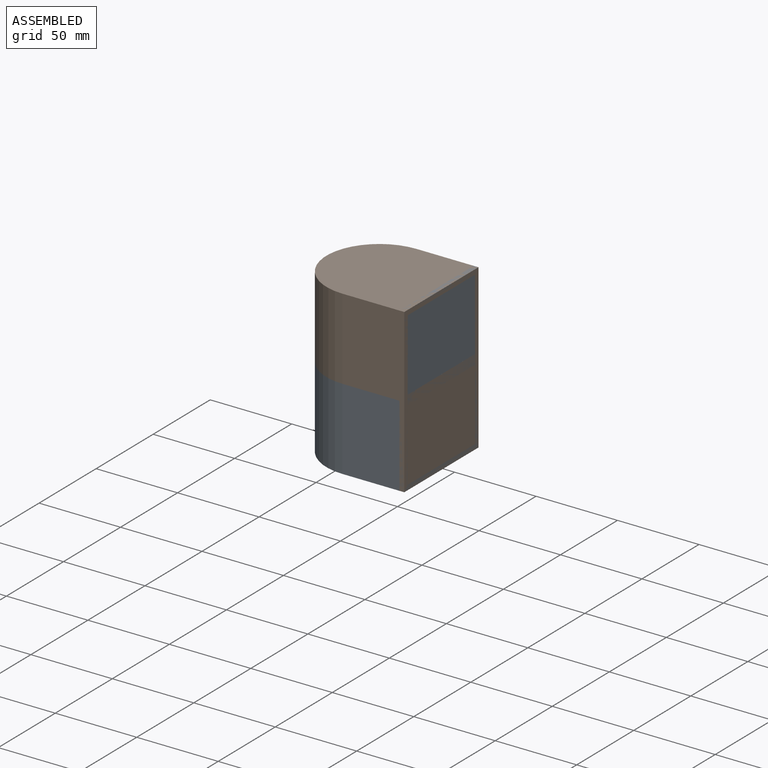
[diagram: assembled view]
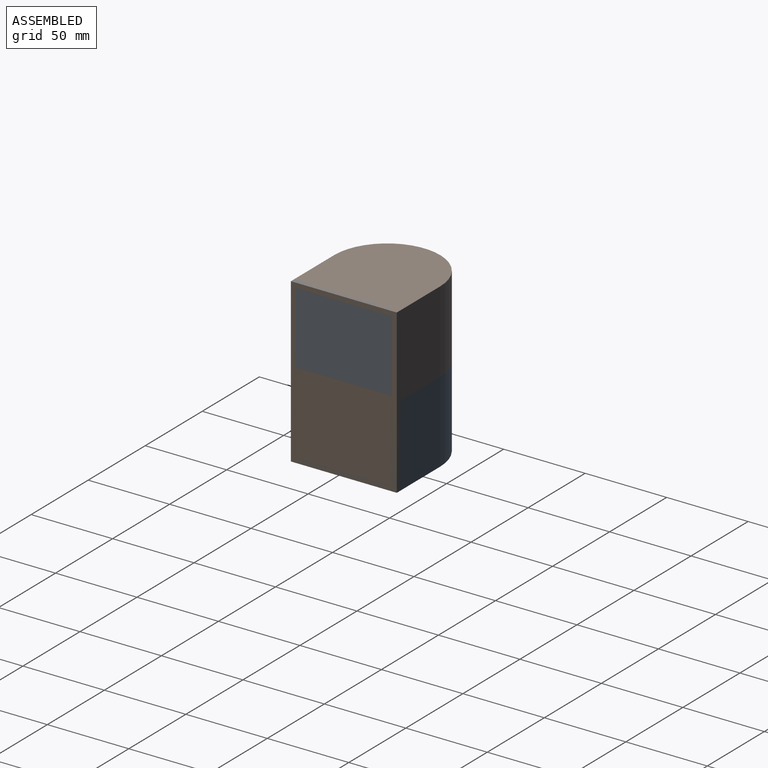
[diagram: assembled view, second angle]
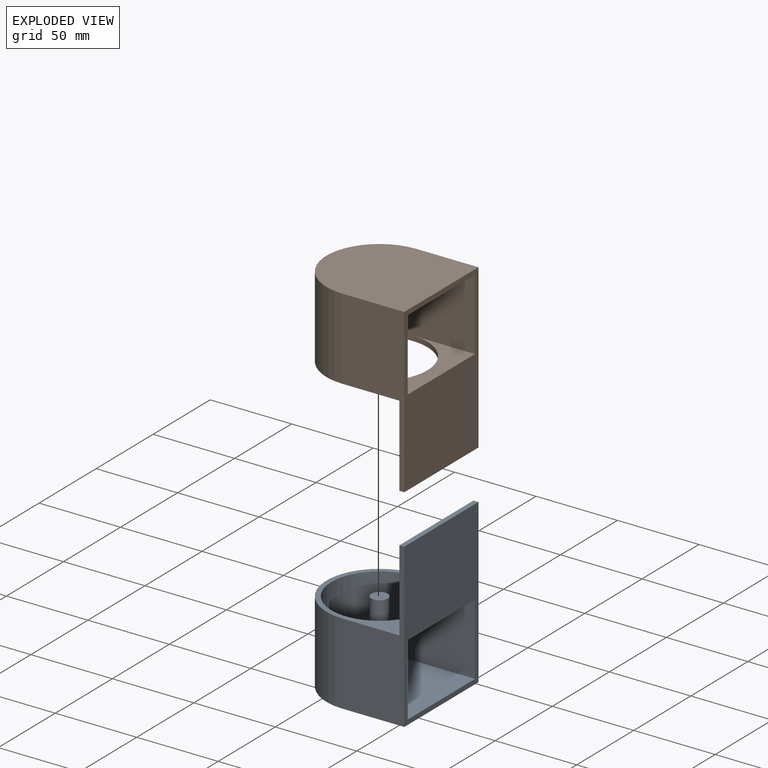
[diagram: exploded view]
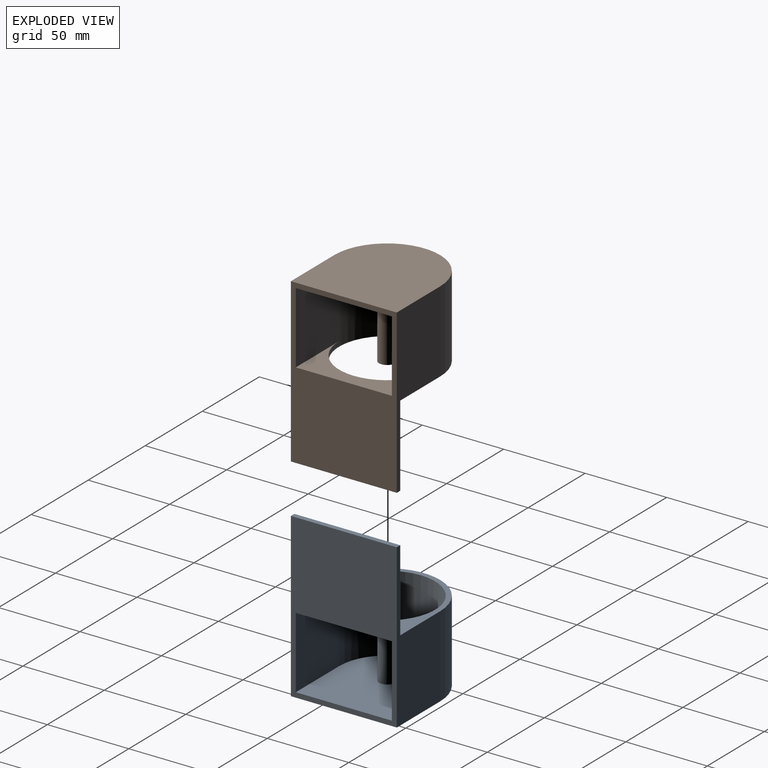
[diagram: exploded view, second angle]
ASSEMBLY  parts=2 mates=2
PART A: 15 faces, bbox 70.5x65x100 mm
  f0: plane 70.5x65mm, normal (0,0,-1), area 4129.2mm2, adj f1,f3,f4,f6
  f1: plane 100x38mm, normal (0,1,0), area 2050mm2, adj f0,f2,f4,f5,f6,f7
  f2: plane 65x3mm, normal (0,0,1), area 195mm2, adj f1,f3,f4,f5
  f3: plane 100x38mm, normal (0,-1,0), area 2050mm2, adj f0,f2,f4,f5,f6,f7
  f4: plane 100x65mm, normal (1,0,0), area 3904mm2, adj f0,f1,f2,f3,f8,f9,f10,f11
  f5: plane 65x50mm, normal (-1,0,0), area 3250mm2, adj f1,f2,f3,f7
  f6: cylinder r=32.5mm len=65mm, axis (0,0,1), area 5105.1mm2, adj f0,f1,f3,f7
  f7: plane 67.5x65mm, normal (0,0,1), area 1200.2mm2, adj f1,f3,f5,f6,f12
  f8: plane 44x38mm, normal (0,1,0), area 1672mm2, adj f4,f9,f10,f12
  f9: plane 59x38mm, normal (0,0,-1), area 875mm2, adj f4,f8,f11,f12
  f10: plane 67.5x59mm, normal (0,0,1), area 3530.4mm2, adj f4,f8,f11,f12,f14
  f11: plane 44x38mm, normal (0,-1,0), area 1672mm2, adj f4,f9,f10,f12
  f12: cylinder r=29.5mm len=59mm, axis (0,0,1), area 4633.8mm2, adj f7,f8,f9,f10,f11
  f13: plane 10x10mm, normal (0,0,1), area 78.5mm2, adj f14
  f14: cylinder r=5mm len=47mm, axis (0,0,1), area 1476.5mm2, adj f10,f13
PART B: same geometry as A
PLACE A t=(-97.25,-83.99,18.22)mm
PLACE B rot(axis=(1,0,0),180deg) t=(-97.25,-83.99,18.22)mm
MATE cylindrical A.f12 <-> B.f12  axis (0,0,1) through (-132.25,-83.99,18.22)mm
MATE planar B.f12 <-> A.f14  axis (0,0,-1) through (-132.25,-83.99,18.22)mm
